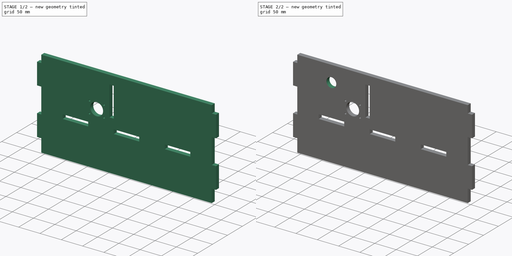
[diagram: build sequence overview — one tinted view per stage of 2, left to right]
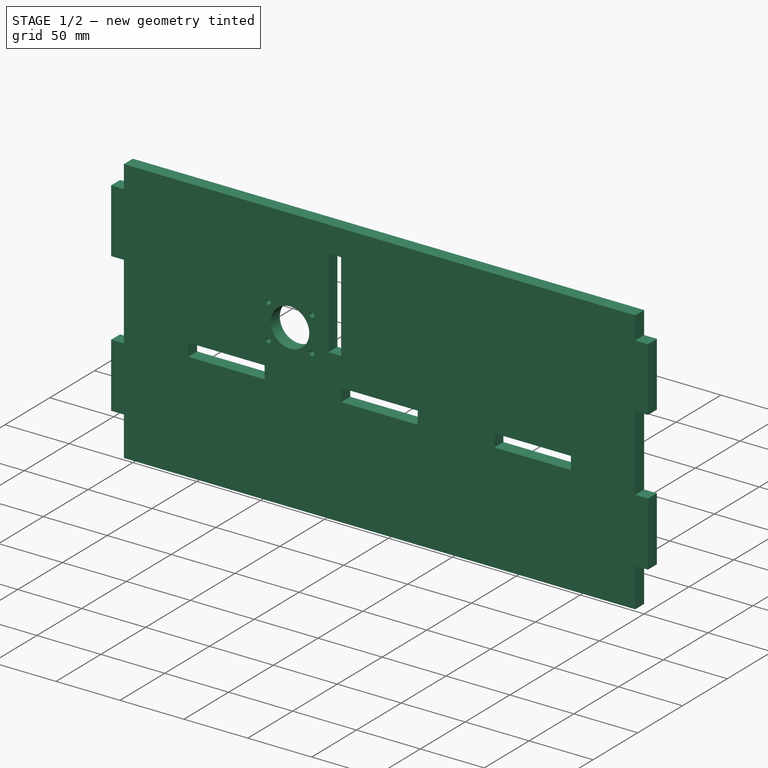
[diagram: stage 1 of 2 — iso view after this stage's code; geometry added in this stage tinted green]
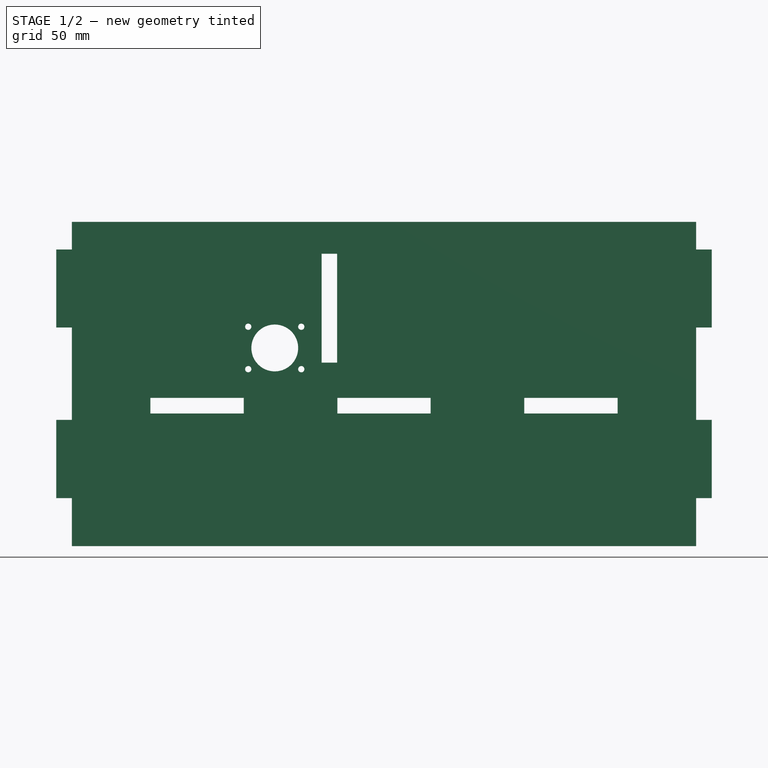
[diagram: stage 1 of 2 — front view after this stage's code; geometry added in this stage tinted green]
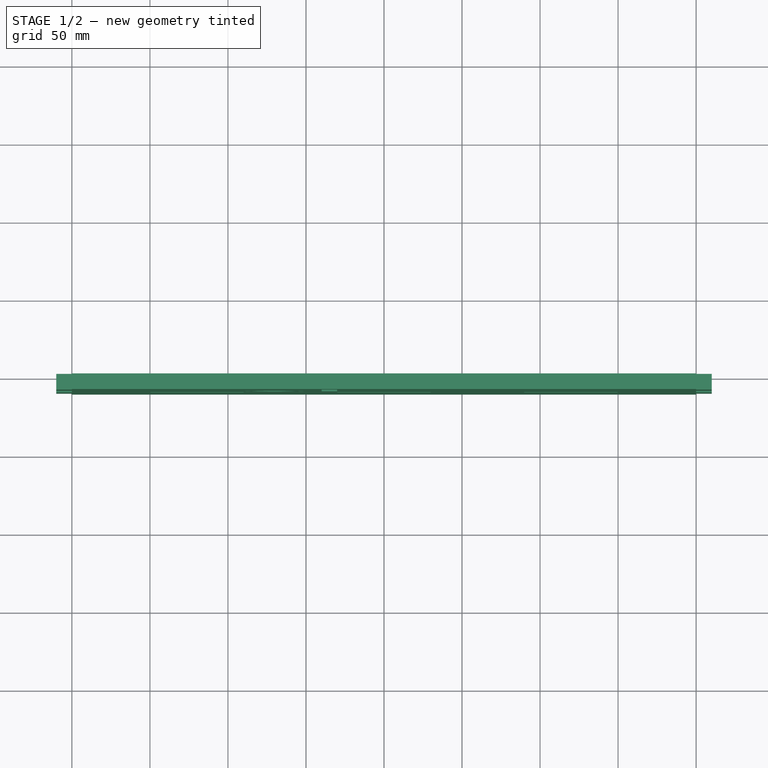
[diagram: stage 1 of 2 — top view after this stage's code; geometry added in this stage tinted green]
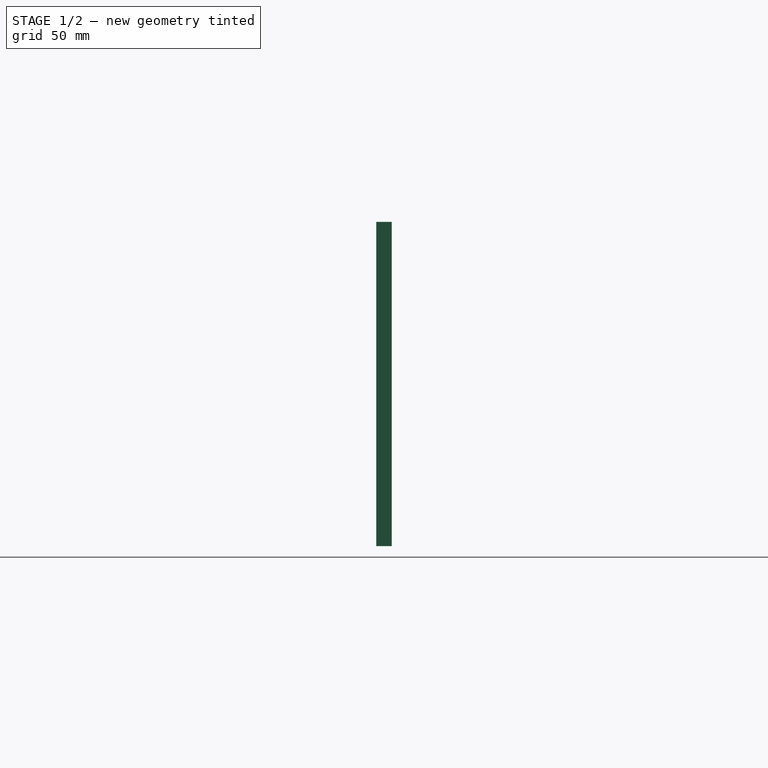
[diagram: stage 1 of 2 — right view after this stage's code; geometry added in this stage tinted green]
FCSTD DOCUMENT  (FreeCAD 0.19R19327 (Git))
Label: Frontal
License: All rights reserved
LicenseURL: http://en.wikipedia.org/wiki/All_rights_reserved
objects: Sketcher::SketchObject×3, PartDesign::Pocket×2, PartDesign::Pad×1, PartDesign::Body×1
note: 10 computed .brp shape members not serialized (recipe doc carries the construction recipe); baked Part::Feature solids carry a one-line shape summary decoded from their .brp

FEATURE [Sketcher::SketchObject] Sketch
  MapMode = 5
  Placement = pos=(0,0,0) rot=(1,0,0;1.5708rad)
  Support = -> [XZ_Plane]
  sketch-geometry (40):
    g0: LineSegment StartX=0 StartY=0 StartZ=0 EndX=0 EndY=30.73 EndZ=0
    g1: LineSegment StartX=0 StartY=30.73 StartZ=0 EndX=-10 EndY=30.73 EndZ=0
    g2: LineSegment StartX=-10 StartY=30.73 StartZ=0 EndX=-10 EndY=80.93 EndZ=0
    g3: LineSegment StartX=-10 StartY=80.93 StartZ=0 EndX=0 EndY=80.93 EndZ=0
    g4: LineSegment StartX=0 StartY=80.93 StartZ=0 EndX=0 EndY=140.1 EndZ=0
    g5: LineSegment StartX=0 StartY=140.1 StartZ=0 EndX=-10 EndY=140.1 EndZ=0
    g6: LineSegment StartX=-10 StartY=140.1 StartZ=0 EndX=-10 EndY=190.1 EndZ=0
    g7: LineSegment StartX=-10 StartY=190.1 StartZ=0 EndX=0 EndY=190.1 EndZ=0
    g8: LineSegment StartX=0 StartY=190.1 StartZ=0 EndX=0 EndY=207.8 EndZ=0
    g9: LineSegment StartX=0 StartY=207.8 StartZ=0 EndX=400 EndY=207.8 EndZ=0
    g10: LineSegment StartX=400 StartY=207.8 StartZ=0 EndX=400 EndY=190.1 EndZ=0
    g11: LineSegment StartX=400 StartY=190.1 StartZ=0 EndX=410 EndY=190.1 EndZ=0
    g12: LineSegment StartX=410 StartY=190.1 StartZ=0 EndX=410 EndY=140.1 EndZ=0
    g13: LineSegment StartX=410 StartY=140.1 StartZ=0 EndX=400 EndY=140.1 EndZ=0
    g14: LineSegment StartX=400 StartY=140.1 StartZ=0 EndX=400 EndY=80.93 EndZ=0
    g15: LineSegment StartX=400 StartY=80.93 StartZ=0 EndX=410 EndY=80.93 EndZ=0
    g16: LineSegment StartX=410 StartY=80.93 StartZ=0 EndX=410 EndY=30.73 EndZ=0
    g17: LineSegment StartX=410 StartY=30.73 StartZ=0 EndX=400 EndY=30.73 EndZ=0
    g18: LineSegment StartX=400 StartY=30.73 StartZ=0 EndX=400 EndY=0 EndZ=0
    g19: LineSegment StartX=400 StartY=0 StartZ=0 EndX=0 EndY=0 EndZ=0
    g20: LineSegment StartX=50.3 StartY=95 StartZ=0 EndX=110.1 EndY=95 EndZ=0
    g21: LineSegment StartX=110.1 StartY=95 StartZ=0 EndX=110.1 EndY=85 EndZ=0
    g22: LineSegment StartX=110.1 StartY=85 StartZ=0 EndX=50.3 EndY=85 EndZ=0
    g23: LineSegment StartX=50.3 StartY=85 StartZ=0 EndX=50.3 EndY=95 EndZ=0
    g24: LineSegment StartX=170.1 StartY=95 StartZ=0 EndX=229.9 EndY=95 EndZ=0
    g25: LineSegment StartX=229.9 StartY=95 StartZ=0 EndX=229.9 EndY=85 EndZ=0
    g26: LineSegment StartX=229.9 StartY=85 StartZ=0 EndX=170.1 EndY=85 EndZ=0
    g27: LineSegment StartX=170.1 StartY=85 StartZ=0 EndX=170.1 EndY=95 EndZ=0
    g28: LineSegment StartX=289.9 StartY=95 StartZ=0 EndX=349.7 EndY=95 EndZ=0
    g29: LineSegment StartX=349.7 StartY=95 StartZ=0 EndX=349.7 EndY=85 EndZ=0
    g30: LineSegment StartX=349.7 StartY=85 StartZ=0 EndX=289.9 EndY=85 EndZ=0
    g31: LineSegment StartX=289.9 StartY=85 StartZ=0 EndX=289.9 EndY=95 EndZ=0
    g32: LineSegment StartX=160 StartY=187.4 StartZ=0 EndX=170 EndY=187.4 EndZ=0
    g33: LineSegment StartX=170 StartY=187.4 StartZ=0 EndX=170 EndY=117.6 EndZ=0
    g34: LineSegment StartX=170 StartY=117.6 StartZ=0 EndX=160 EndY=117.6 EndZ=0
    g35: LineSegment StartX=160 StartY=117.6 StartZ=0 EndX=160 EndY=187.4 EndZ=0
    g36: LineSegment [constr] StartX=0 StartY=85 StartZ=0 EndX=50.3 EndY=85 EndZ=0
    g37: LineSegment [constr] StartX=110.1 StartY=85 StartZ=0 EndX=170.1 EndY=85 EndZ=0
    g38: LineSegment [constr] StartX=229.9 StartY=85 StartZ=0 EndX=289.9 EndY=85 EndZ=0
    g39: LineSegment [constr] StartX=349.7 StartY=85 StartZ=0 EndX=400 EndY=85 EndZ=0
  constraints (117):
    c: Coincident(g-1,g0)
    c: PointOnObject(g0,g-2)
    c: Coincident(g0,g1)
    c: Horizontal(g1)
    c: Coincident(g1,g2)
    c: Coincident(g2,g3)
    c: PointOnObject(g3,g-2)
    c: Horizontal(g3)
    c: Coincident(g3,g4)
    c: Vertical(g4)
    c: Coincident(g4,g5)
    c: Horizontal(g5)
    c: Coincident(g5,g6)
    c: Vertical(g6)
    c: Coincident(g6,g7)
    c: Horizontal(g7)
    c: Coincident(g7,g8)
    c: PointOnObject(g8,g-2)
    c: Coincident(g8,g9)
    c: Horizontal(g9)
    c: Coincident(g9,g10)
    c: Vertical(g10)
    c: Coincident(g10,g11)
    c: Horizontal(g11)
    c: Coincident(g11,g12)
    c: Vertical(g12)
    c: Coincident(g12,g13)
    c: Horizontal(g13)
    c: Coincident(g13,g14)
    c: Vertical(g14)
    c: Coincident(g14,g15)
    c: Coincident(g15,g16)
    c: Coincident(g16,g17)
    c: Horizontal(g17)
    c: Coincident(g17,g18)
    c: PointOnObject(g18,g-1)
    c: Vertical(g18)
    c: Coincident(g18,g19)
    c: Coincident(g19,g0)
    c: Horizontal(g15)
    c: Equal(g8,g10)
    c: Equal(g6,g12)
    c: Equal(g2,g16)
    c: Equal(g18,g0)
    c: Equal(g1,g3)
    c: Equal(g3,g5)
    c: Equal(g5,g7)
    c: Equal(g7,g11)
    c: Equal(g11,g13)
    c: Equal(g13,g15)
    c: Equal(g15,g17)
    c: DistanceX(g1,g1) = 10
    c: DistanceY(g0,g0) = 30.73
    c: DistanceY(g2,g2) = 50.2
    c: DistanceY(g4,g4) = 59.17
    c: DistanceY(g6,g6) = 50
    c: DistanceY(g8,g8) = 17.7
    c: Equal(g19,g9)
    c: DistanceX(g9,g9) = 400
    c: Coincident(g20,g21)
    c: Coincident(g21,g22)
    c: Coincident(g22,g23)
    c: Coincident(g23,g20)
    c: Horizontal(g20)
    c: Horizontal(g22)
    c: Vertical(g21)
    c: Vertical(g23)
    c: Coincident(g24,g25)
    c: Coincident(g25,g26)
    c: Coincident(g26,g27)
    c: Coincident(g27,g24)
    c: Horizontal(g24)
    c: Horizontal(g26)
    c: Vertical(g25)
    c: Vertical(g27)
    c: Coincident(g28,g29)
    c: Coincident(g29,g30)
    c: Coincident(g30,g31)
    c: Coincident(g31,g28)
    c: Horizontal(g28)
    c: Horizontal(g30)
    c: Vertical(g29)
    c: Vertical(g31)
    c: Coincident(g32,g33)
    c: Coincident(g33,g34)
    c: Coincident(g34,g35)
    c: Coincident(g35,g32)
    c: Horizontal(g32)
    c: Horizontal(g34)
    c: Vertical(g33)
    c: PointOnObject(g36,g4)
    c: Horizontal(g36)
    c: Coincident(g22,g36)
    c: Coincident(g37,g21)
    c: Horizontal(g37)
    c: Coincident(g26,g37)
    c: Coincident(g38,g25)
    c: Horizontal(g38)
    c: Coincident(g30,g38)
    c: Coincident(g39,g29)
    c: Horizontal(g39)
    c: PointOnObject(g39,g14)
    c: Equal(g38,g37)
    c: Equal(g36,g39)
    c: Equal(g28,g24)
    c: Equal(g24,g20)
    c: Equal(g23,g27)
    c: Equal(g27,g31)
    c: Equal(g31,g34)
    c: Equal(g34,g32)
    c: DistanceX(g32,g32) = 10
    c: DistanceX(g20,g20) = 59.8
    c: DistanceX(g37,g37) = 60
    c: DistanceY(g35,g35) = 69.8
    c: DistanceX(g0,g34) = 160
    c: DistanceY(g0,g34) = 117.6
    c: DistanceY(g0,g22) = 85
FEATURE [PartDesign::Pad] Pad
  Length = 10
  Length2 = 100
  Placement = pos=(0,0,0) rot=(1,0,0;1.5708rad)
  Profile = -> Sketch
  Type = 0
FEATURE [Sketcher::SketchObject] Sketch001
  MapMode = 5
  Placement = pos=(0,0,0) rot=(1,0,0;1.5708rad)
  Support = -> [XZ_Plane]
  sketch-geometry (10):
    g0: LineSegment [constr] StartX=113 StartY=140.6 StartZ=0 EndX=147 EndY=140.6 EndZ=0
    g1: LineSegment [constr] StartX=147 StartY=140.6 StartZ=0 EndX=147 EndY=113.4 EndZ=0
    g2: LineSegment [constr] StartX=147 StartY=113.4 StartZ=0 EndX=113 EndY=113.4 EndZ=0
    g3: LineSegment [constr] StartX=113 StartY=113.4 StartZ=0 EndX=113 EndY=140.6 EndZ=0
    g4: LineSegment [constr] StartX=113 StartY=113.4 StartZ=0 EndX=147 EndY=140.6 EndZ=0
    g5: Circle CenterX=113 CenterY=140.6 CenterZ=0 NormalX=0 NormalY=0 NormalZ=1 AngleXU=0 Radius=2
    g6: Circle CenterX=147 CenterY=140.6 CenterZ=0 NormalX=0 NormalY=0 NormalZ=1 AngleXU=0 Radius=2
    g7: Circle CenterX=147 CenterY=113.4 CenterZ=0 NormalX=0 NormalY=0 NormalZ=1 AngleXU=0 Radius=2
    g8: Circle CenterX=113 CenterY=113.4 CenterZ=0 NormalX=0 NormalY=0 NormalZ=1 AngleXU=0 Radius=2
    g9: Circle CenterX=130 CenterY=127 CenterZ=0 NormalX=0 NormalY=0 NormalZ=1 AngleXU=0 Radius=15
  constraints (24):
    c: Coincident(g0,g1)
    c: Coincident(g1,g2)
    c: Coincident(g2,g3)
    c: Coincident(g3,g0)
    c: Horizontal(g0)
    c: Horizontal(g2)
    c: Vertical(g1)
    c: Vertical(g3)
    c: Coincident(g4,g2)
    c: Coincident(g4,g0)
    c: DistanceY(g1,g1) = 27.2
    c: DistanceX(g0,g0) = 34
    c: Coincident(g5,g0)
    c: Coincident(g6,g0)
    c: Coincident(g7,g1)
    c: Coincident(g8,g2)
    c: Equal(g8,g5)
    c: Equal(g5,g6)
    c: Equal(g6,g7)
    c: Radius(g5) = 2
    c: Radius(g9) = 15
    c: Symmetric(g8,g6,g9)
    c: DistanceY(g-1,g9) = 127
    c: DistanceX(g-1,g9) = 130
FEATURE [PartDesign::Pocket] Pocket
  BaseFeature = -> Pad
  Length = 5
  Length2 = 100
  Placement = pos=(0,0,0) rot=(1,0,0;1.5708rad)
  Profile = -> Sketch001
  Reversed = true
  Type = 1
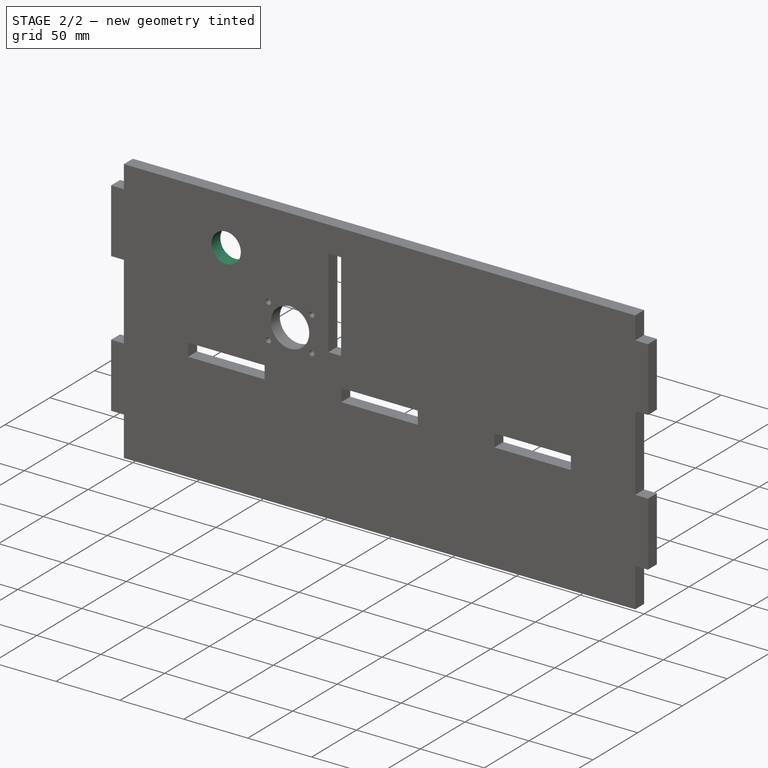
[diagram: stage 2 of 2 — iso view after this stage's code; geometry added in this stage tinted green]
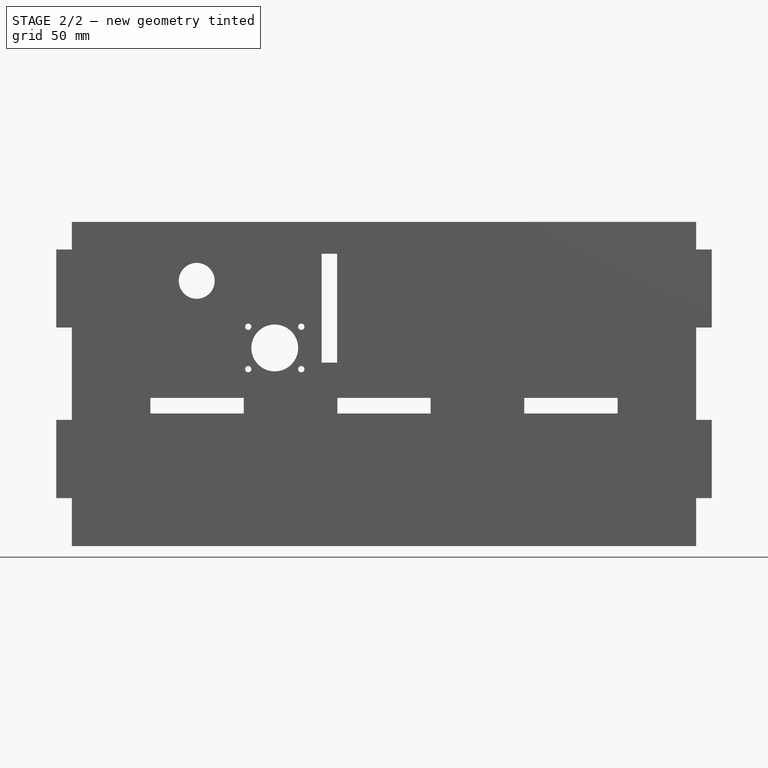
[diagram: stage 2 of 2 — front view after this stage's code; geometry added in this stage tinted green]
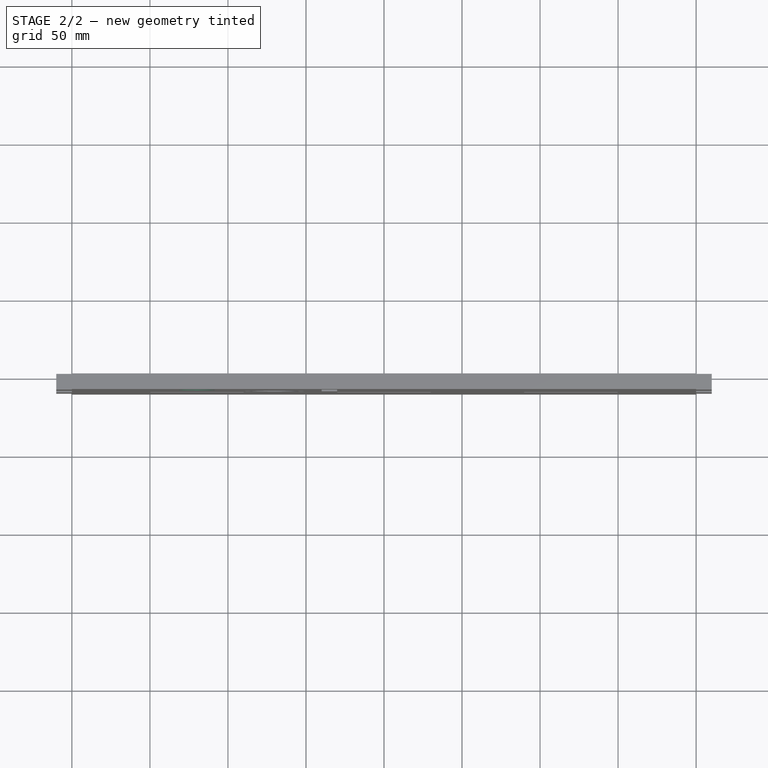
[diagram: stage 2 of 2 — top view after this stage's code; geometry added in this stage tinted green]
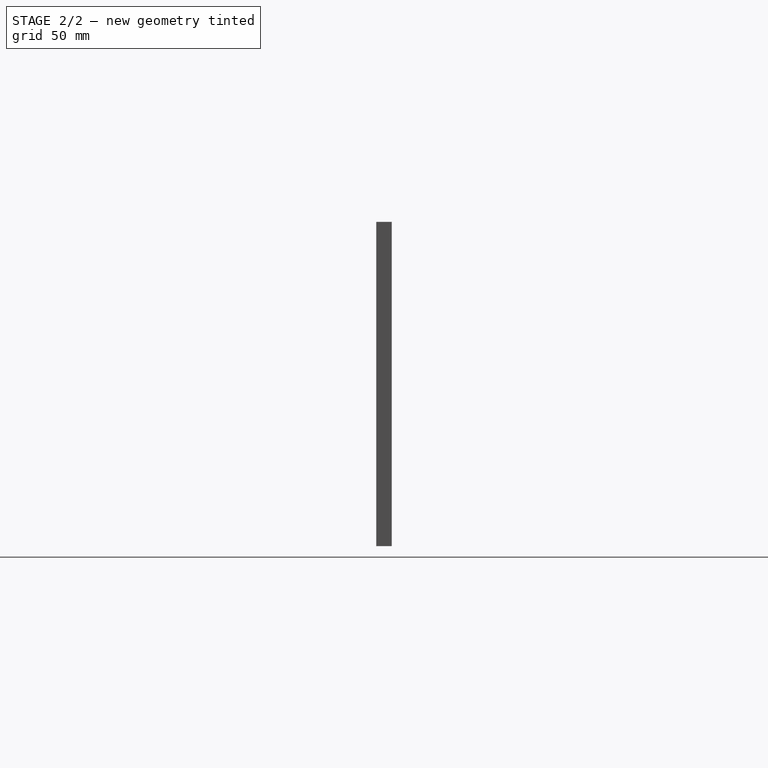
[diagram: stage 2 of 2 — right view after this stage's code; geometry added in this stage tinted green]
FEATURE [Sketcher::SketchObject] Sketch002
  MapMode = 5
  Placement = pos=(0,0,0) rot=(1,0,0;1.5708rad)
  Support = -> [XZ_Plane]
  sketch-geometry (1):
    g0: Circle CenterX=80 CenterY=170 CenterZ=0 NormalX=0 NormalY=0 NormalZ=1 AngleXU=0 Radius=11.5
  constraints (3):
    c: Radius(g0) = 11.5
    c: DistanceX(g-1,g0) = 80
    c: DistanceY(g-1,g0) = 170
FEATURE [PartDesign::Pocket] Pocket001
  BaseFeature = -> Pocket
  Length = 5
  Length2 = 100
  Placement = pos=(0,0,0) rot=(1,0,0;1.5708rad)
  Profile = -> Sketch002
  Reversed = true
  Type = 1
FEATURE [PartDesign::Body] Body
  Group = -> [Sketch,Pad,Sketch001,Pocket,Sketch002,Pocket001]
  Origin = -> Origin
  Tip = -> Pocket001
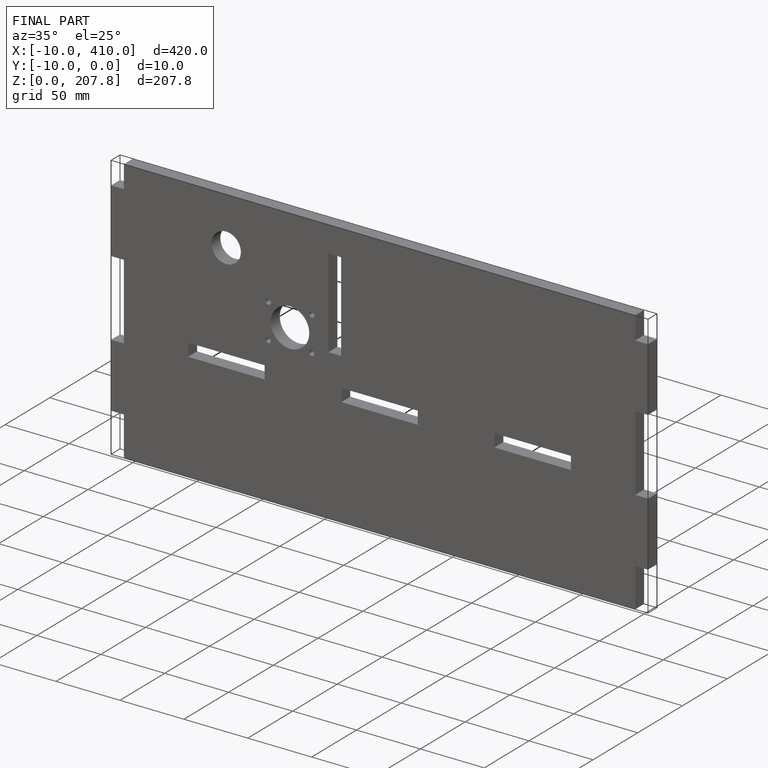
[diagram: finished part — iso view with bounding-box wireframe]
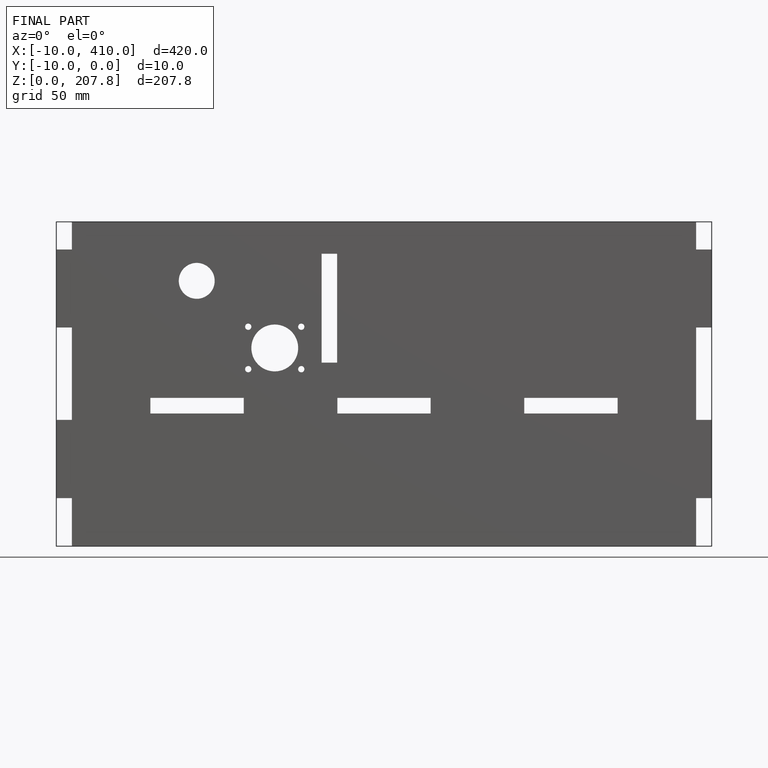
[diagram: finished part — front view with bounding-box wireframe]
